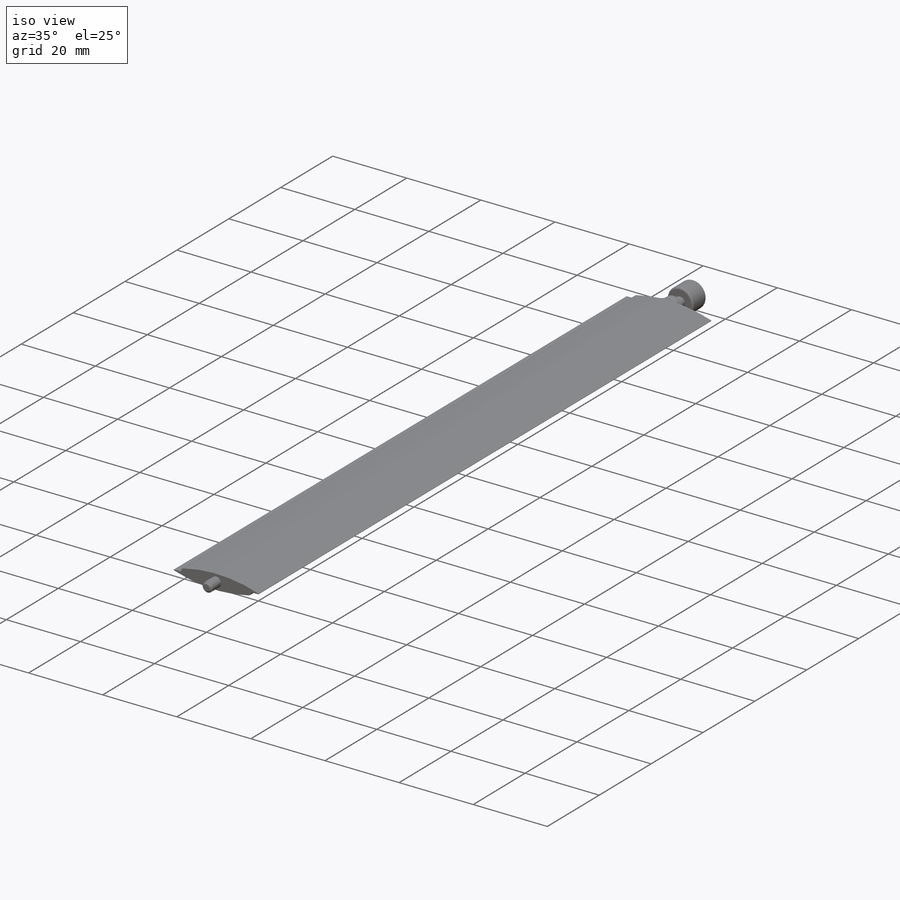
[diagram: iso view]
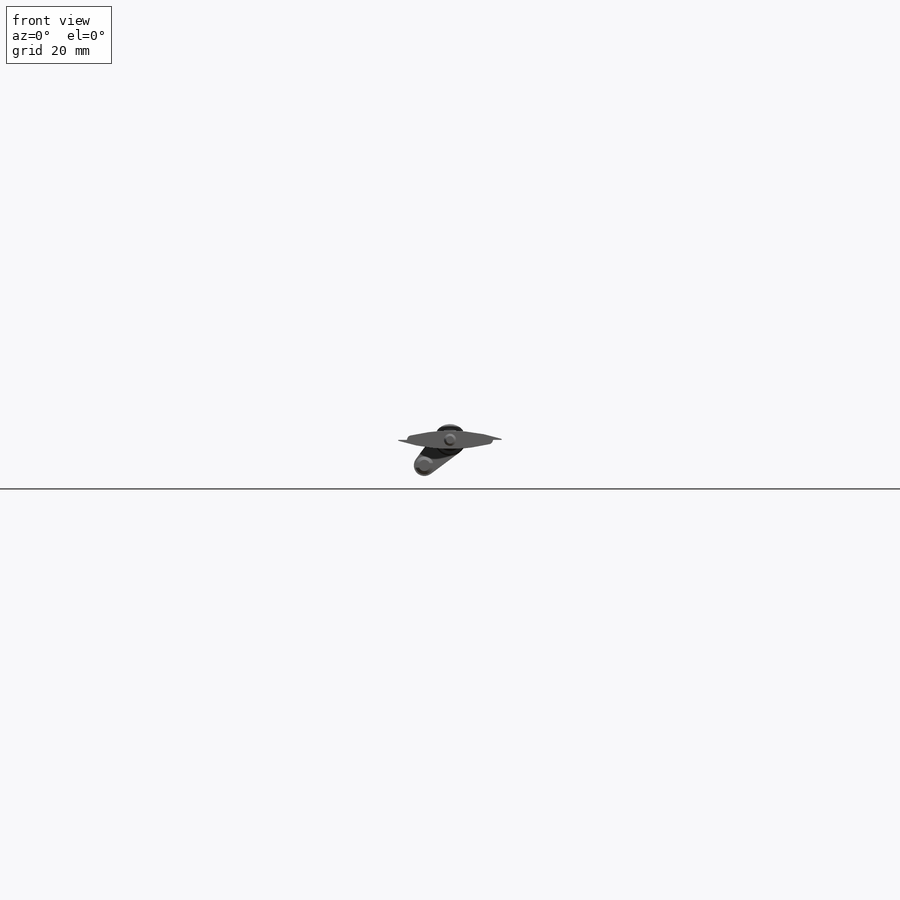
[diagram: front view]
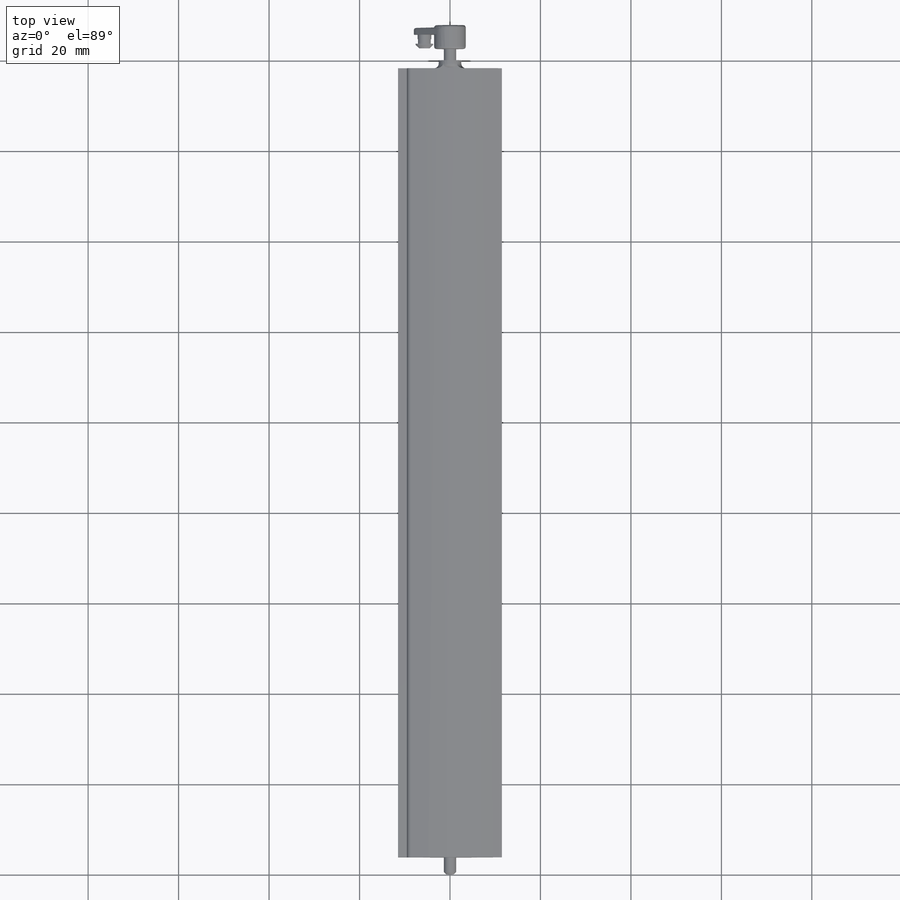
[diagram: top view]
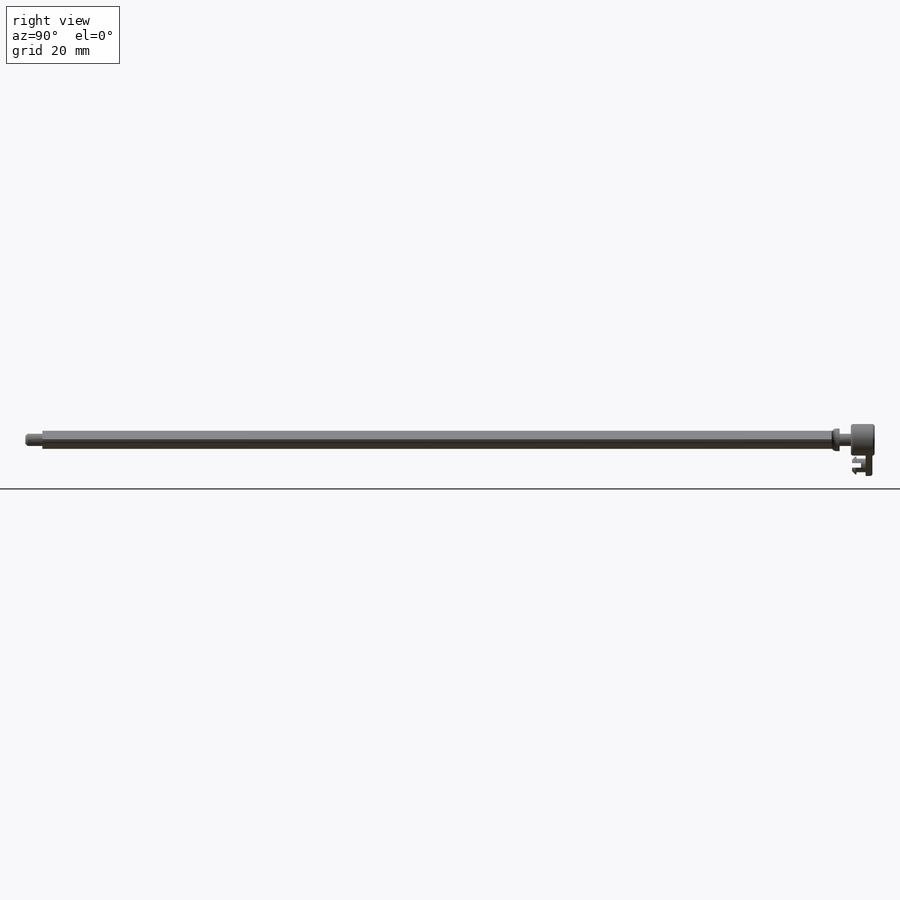
[diagram: right view]
SOLIDWORKS PART (.sldprt)
format: sldprt  version: not decoded by parser v0  size: 392,192 bytes
history: native  units: mm
features: sketch x10, extrude x7, fillet x7, chamfer x3, cut_extrude x3, material x1, plane x1 (+13 scaffold rows collapsed)
feature tree (45):
  scaffold x13  (default folders/planes/origin — collapsed)
  material  "PVC 0.007 Plasticized"
  sketch  "Sketch1"  dims[D1=2.7mm]
  extrude  "Boss-Extrude1"  Depth=182.5mm
  sketch  "Sketch2"  dims[D1=7.0mm]
  extrude  "Boss-Extrude2"  Depth=5.25mm
  sketch  "Sketch3"  dims[D1=5.0mm]
  extrude  "Boss-Extrude3"  Depth=1.75mm
  chamfer  "Chamfer1"  Distance=0.5mm Angle=45deg
  fillet  "Fillet1"  Radius=0.5mm
  sketch  "Sketch4"  dims[c1.D3=0.5mm c1.D1=20.0mm c1.D2=4.0mm c2.D1=23.0mm]
  extrude  "Boss-Extrude4"  Depth=174.5mm
  fillet  "Fillet2"  Radius=1mm
  fillet  "Fillet3"  Radius=1mm
  plane  "Plane1"
  sketch  "Sketch5"  dims[c1.D3=4.7mm c1.D1=~7.345429mm c2.D1=225.0deg c2.D2=8.0mm]
  extrude  "Boss-Extrude5"  Depth=1.5mm
  sketch  "Sketch6"  dims[D1=3.0mm]
  extrude  "Boss-Extrude6"  Depth=2mm
  sketch  "Sketch7"  dims[D1=4.0mm]
  extrude  "Boss-Extrude7"  Depth=1mm
  chamfer  "Chamfer2"  Distance=0.75mm Angle=45deg
  sketch  "Sketch8"  dims[D1=1.0mm]
  cut_extrude  "Cut-Extrude1"  Depth=2mm
  sketch  "Sketch9"  dims[D1=5.1mm D2=3.1mm]
  cut_extrude  "Cut-Extrude2"  Depth=4.5mm
  chamfer  "Chamfer3"  Distance=0.2mm Angle=45deg
  fillet  "Fillet4"  Radius=0.5mm
  sketch  "Sketch10"  dims[D1=2.0mm D2=2.0mm]
  cut_extrude  "Cut-Extrude3"  [1 undecoded]
  fillet  "Fillet5"  Radius=1mm
  fillet  "Fillet6"  Radius=0.1mm
  fillet  "Fillet7"  Radius=0.15mm
decode coverage: 29 of 30 modeling features carry decoded parameters
note: ~ marks probable driven/reference dimensions
note: 1 parameter value undecoded
note: suppression state not decoded; provenance and decode notes live in map.json
